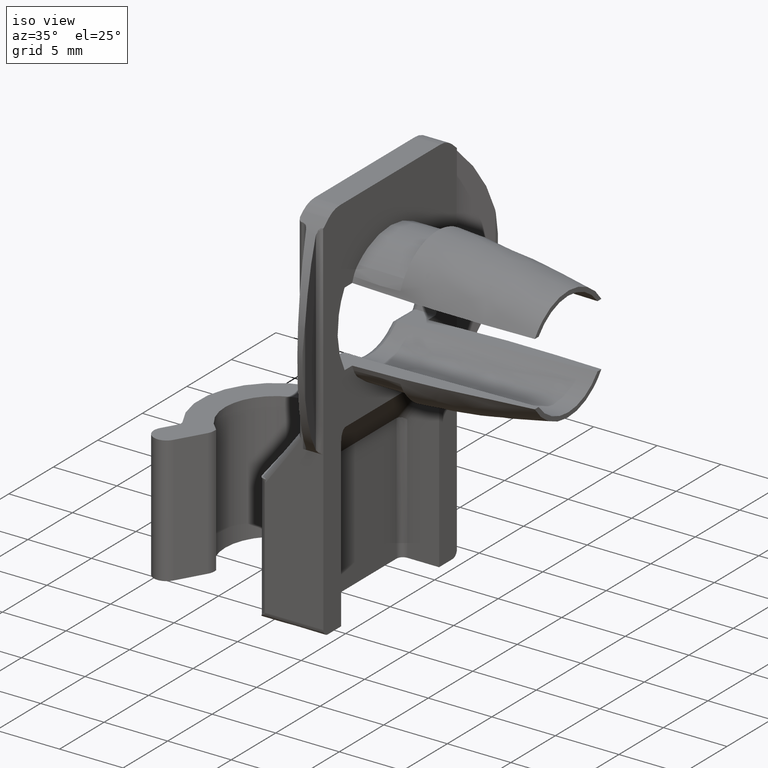
[diagram: clean part render]
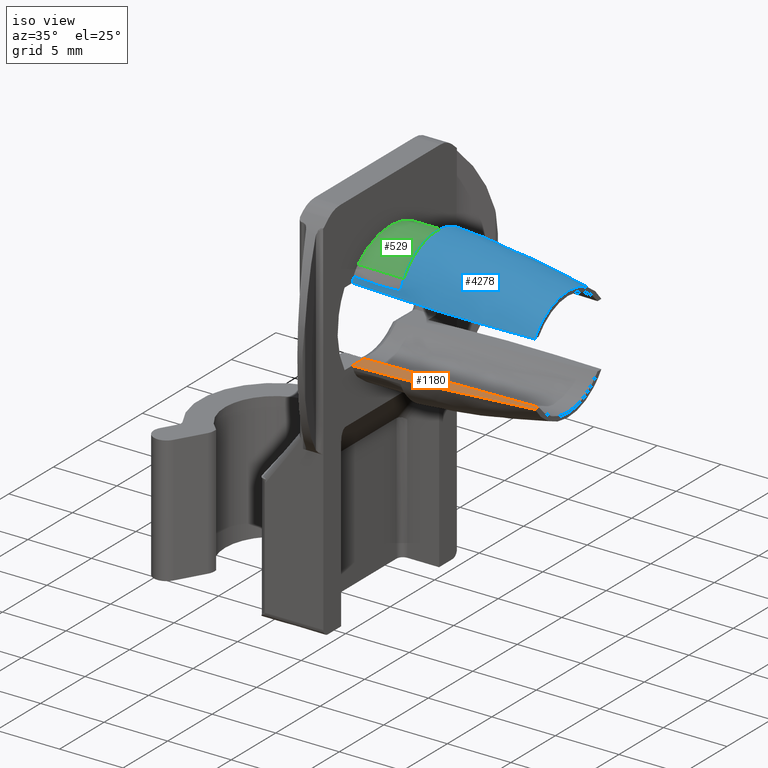
[diagram: same view with three faces highlighted in distinct colors, each labeled with its STEP entity id]
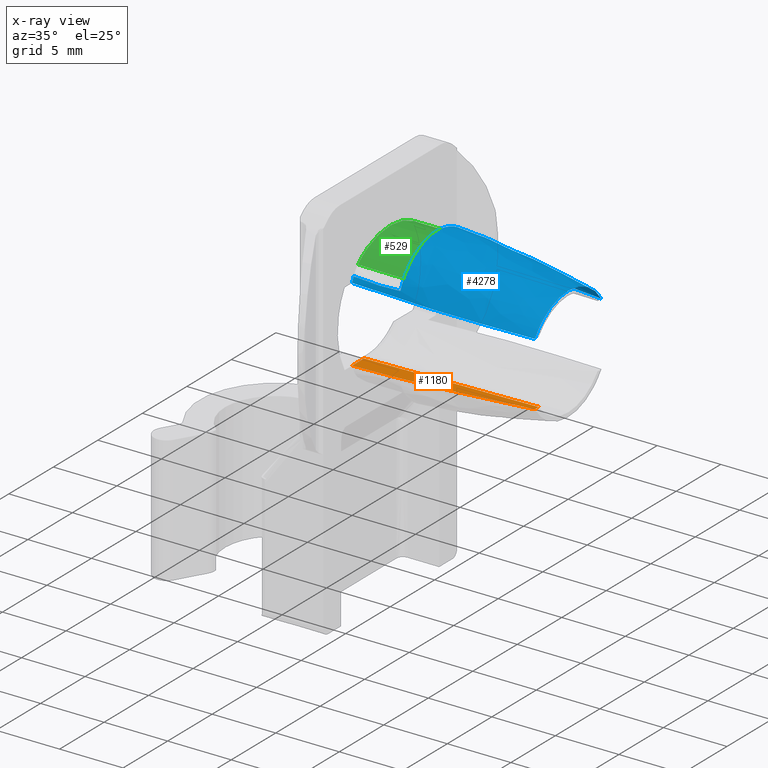
[diagram: x-ray of the same camera — body ghosted, the three highlighted faces saturated]
A machine part, iso view with three faces highlighted in distinct colors.
The next image is the same camera in x-ray (body ghosted, the three faces saturated) — at least one of them is partly hidden behind the body in this view.
Their STEP definitions:

[orange] entity #1180 — the highlighted face is a freeform B-spline surface patch.
#1126=CARTESIAN_POINT('',(-0.699300022815281,-4.376957850473700,-2.959353842485504));
#1127=CARTESIAN_POINT('',(14.699301398324550,-4.376957850473700,-2.478146829939503));
#1128=CARTESIAN_POINT('',(-0.699300022815281,-2.862716975014570,-2.959353842485504));
#1129=CARTESIAN_POINT('',(14.699301398324550,-2.862716975014570,-2.478146829939503));
#1130=B_SPLINE_SURFACE_WITH_KNOTS('',1,1,((#1126,#1128),(#1127,#1129)),.UNSPECIFIED.,.F.,.F.,.U.,(2,2),(2,2),(0.0,15.406118457160231),(0.041713803041726,0.958291427265853),.UNSPECIFIED.);
#1131=CARTESIAN_POINT('',(14.000000999999980,-3.312476415010535,-2.500000000000000));
#1132=VERTEX_POINT('',#1131);
#1133=CARTESIAN_POINT('',(14.000000999999980,-3.741232967873545,-2.500000000000000));
#1134=VERTEX_POINT('',#1133);
#1135=CARTESIAN_POINT('',(14.000000999999980,-3.312476415010535,-2.500000000000000));
#1136=CARTESIAN_POINT('',(14.000000999999980,-3.741232967873545,-2.500000000000000));
#1137=QUASI_UNIFORM_CURVE('',1,(#1135,#1136),.UNSPECIFIED.,.F.,.U.);
#1138=EDGE_CURVE('',#1132,#1134,#1137,.T.);
#1139=ORIENTED_EDGE('',*,*,#1138,.F.);
#1140=CARTESIAN_POINT('',(0.0,-2.931483560914855,-2.937499639503970));
#1141=VERTEX_POINT('',#1140);
#1142=CARTESIAN_POINT('',(14.000000999999980,-3.312476415010535,-2.500000000000000));
#1143=CARTESIAN_POINT('',(6.572874453938194,-3.137307382620636,-2.732097496794270));
#1144=CARTESIAN_POINT('',(0.0,-2.931483560914855,-2.937499639503970));
#1152=(BOUNDED_CURVE()B_SPLINE_CURVE(2,(#1142,#1143,#1144),.UNSPECIFIED.,.F.,.U.)CURVE()GEOMETRIC_REPRESENTATION_ITEM()QUASI_UNIFORM_CURVE()RATIONAL_B_SPLINE_CURVE((1.0,0.997554251139923,1.0))REPRESENTATION_ITEM(''));
#1153=EDGE_CURVE('',#1132,#1141,#1152,.T.);
#1154=ORIENTED_EDGE('',*,*,#1153,.T.);
#1155=CARTESIAN_POINT('',(0.0,-4.261698606471740,-2.937500684159690));
#1156=VERTEX_POINT('',#1155);
#1157=CARTESIAN_POINT('',(0.0,-2.931483560914855,-2.937499639503970));
#1158=CARTESIAN_POINT('',(0.0,-4.261698606471740,-2.937500684159690));
#1159=QUASI_UNIFORM_CURVE('',1,(#1157,#1158),.UNSPECIFIED.,.F.,.U.);
#1160=EDGE_CURVE('',#1141,#1156,#1159,.T.);
#1161=ORIENTED_EDGE('',*,*,#1160,.T.);
#1162=CARTESIAN_POINT('',(14.000000999999980,-3.741232967873545,-2.500000000000000));
#1163=CARTESIAN_POINT('',(12.835844566976830,-3.840756952667970,-2.536379942011818));
#1164=CARTESIAN_POINT('',(11.671371785609670,-3.936234963273378,-2.572769779677317));
#1165=CARTESIAN_POINT('',(9.340504829341636,-4.102851975159538,-2.645609479137943));
#1166=CARTESIAN_POINT('',(8.174250397016063,-4.174178171342592,-2.682054983724761));
#1167=CARTESIAN_POINT('',(6.423444699692329,-4.250932564681252,-2.736767742197306));
#1168=CARTESIAN_POINT('',(5.839475525595292,-4.271465092389796,-2.755016805715242));
#1169=CARTESIAN_POINT('',(4.963524931993098,-4.292799048232805,-2.782390302006503));
#1170=CARTESIAN_POINT('',(4.671543355855450,-4.298330136172320,-2.791514739674416));
#1171=CARTESIAN_POINT('',(4.087584560325857,-4.305870858822704,-2.809763478861971));
#1172=CARTESIAN_POINT('',(2.627701253343716,-4.315564134451880,-2.855384899272981));
#1173=CARTESIAN_POINT('',(1.167865805137671,-4.286574307350698,-2.901004824095972));
#1174=CARTESIAN_POINT('',(0.0,-4.261698606471740,-2.937500684159690));
#1175=B_SPLINE_CURVE_WITH_KNOTS('',3,(#1162,#1163,#1164,#1165,#1166,#1167,#1168,#1169,#1170,#1171,#1172,#1173,#1174),.UNSPECIFIED.,.F.,.U.,(4,2,2,2,2,1,4),(0.000003917022872,0.250000000000000,0.500000000000000,0.625000000000000,0.687500000000000,0.750000000000000,0.999999496767781),.UNSPECIFIED.);
#1176=EDGE_CURVE('',#1134,#1156,#1175,.T.);
#1177=ORIENTED_EDGE('',*,*,#1176,.F.);
#1178=EDGE_LOOP('',(#1139,#1154,#1161,#1177));
#1179=FACE_OUTER_BOUND('',#1178,.T.);
#1180=ADVANCED_FACE('',(#1179),#1130,.T.);

[blue] entity #4278 — the highlighted face is a freeform B-spline surface patch.
#82=CARTESIAN_POINT('',(0.0,-4.099418711884916,3.347956923571710));
#83=VERTEX_POINT('',#82);
#97=CARTESIAN_POINT('',(3.700001000000000,-4.128457397104045,3.306215122346200));
#98=VERTEX_POINT('',#97);
#99=CARTESIAN_POINT('',(3.700001000000000,-4.128457397104045,3.306215122346200));
#100=CARTESIAN_POINT('',(3.391999047873050,-4.142180217898688,3.286502020329005));
#101=CARTESIAN_POINT('',(3.083773449158488,-4.149586015131855,3.275559153809963));
#102=CARTESIAN_POINT('',(2.467003504833615,-4.155783363667416,3.266440961115987));
#103=CARTESIAN_POINT('',(2.158458266908443,-4.154532726085320,3.268288924398687));
#104=CARTESIAN_POINT('',(1.232495301524052,-4.141887266752386,3.286909601925169));
#105=CARTESIAN_POINT('',(0.616201854731451,-4.121384574441821,3.316888922331295));
#106=CARTESIAN_POINT('',(0.0,-4.099418711884916,3.347956923571710));
#107=B_SPLINE_CURVE_WITH_KNOTS('',3,(#99,#100,#101,#102,#103,#104,#105,#106),.UNSPECIFIED.,.F.,.U.,(4,2,2,4),(0.0,0.250000000000000,0.500000000000000,0.999999963217079),.UNSPECIFIED.);
#108=EDGE_CURVE('',#98,#83,#107,.T.);
#175=CARTESIAN_POINT('',(3.700001000000000,4.128457397104084,3.306215122346105));
#176=VERTEX_POINT('',#175);
#190=CARTESIAN_POINT('',(0.0,4.099426877488095,3.347960629082760));
#191=VERTEX_POINT('',#190);
#192=CARTESIAN_POINT('',(0.0,4.099426877488095,3.347960629082760));
#193=CARTESIAN_POINT('',(0.616201837425678,4.121391378458610,3.316892011311229));
#194=CARTESIAN_POINT('',(1.232495266956013,4.141892708601440,3.286912075109566));
#195=CARTESIAN_POINT('',(2.158458223651801,4.154536124565493,3.268290469493173));
#196=CARTESIAN_POINT('',(2.467003470239358,4.155786081582886,3.266442196796633));
#197=CARTESIAN_POINT('',(3.083773431874028,4.149587373094285,3.275559771197741));
#198=CARTESIAN_POINT('',(3.391999039236044,4.142180896469506,3.286502328836260));
#199=CARTESIAN_POINT('',(3.700001000000000,4.128457397104084,3.306215122346105));
#200=B_SPLINE_CURVE_WITH_KNOTS('',3,(#192,#193,#194,#195,#196,#197,#198,#199),.UNSPECIFIED.,.F.,.U.,(4,2,2,4),(0.000000064881542,0.500000000000000,0.750000000000000,1.0),.UNSPECIFIED.);
#201=EDGE_CURVE('',#191,#176,#200,.T.);
#535=CARTESIAN_POINT('',(3.700001000000000,4.128457397104084,3.306215122346105));
#536=CARTESIAN_POINT('',(3.700000999999991,3.884432094344327,3.867682339679244));
#537=CARTESIAN_POINT('',(3.700000999999990,3.528445623829919,4.380062872363206));
#538=CARTESIAN_POINT('',(3.700000999999990,2.256819614045084,5.573592221250228));
#539=CARTESIAN_POINT('',(3.700000999999990,1.131363887588923,6.019001920131410));
#540=CARTESIAN_POINT('',(3.700000999999990,-1.131363887588922,6.019001920131410));
#541=CARTESIAN_POINT('',(3.700000999999990,-2.256819614045084,5.573592221250222));
#542=CARTESIAN_POINT('',(3.700000999999990,-3.528445623829896,4.380062872363228));
#543=CARTESIAN_POINT('',(3.700000999999990,-3.884432094344289,3.867682339679302));
#544=CARTESIAN_POINT('',(3.700001000000000,-4.128457397104045,3.306215122346200));
#545=B_SPLINE_CURVE_WITH_KNOTS('',3,(#535,#536,#537,#538,#539,#540,#541,#542,#543,#544),.UNSPECIFIED.,.F.,.U.,(4,2,2,2,4),(0.114680008765642,0.250000000000000,0.500000000000000,0.750000000000000,0.885319991234351),.UNSPECIFIED.);
#546=EDGE_CURVE('',#176,#98,#545,.T.);
#1075=CARTESIAN_POINT('',(0.0,-4.261669229081220,2.937499639503975));
#1076=VERTEX_POINT('',#1075);
#1099=CARTESIAN_POINT('',(14.000000999999980,-3.741263463284405,2.499999999999901));
#1100=VERTEX_POINT('',#1099);
#1106=CARTESIAN_POINT('',(0.0,-4.261669229081220,2.937499639503975));
#1107=CARTESIAN_POINT('',(1.168057187426552,-4.286553953518574,2.900997885081650));
#1108=CARTESIAN_POINT('',(2.336132272792261,-4.309757873366620,2.864495571346266));
#1109=CARTESIAN_POINT('',(3.796556458133838,-4.307791702243252,2.818857356420155));
#1110=CARTESIAN_POINT('',(4.088684468576654,-4.305849440656031,2.809728364268188));
#1111=CARTESIAN_POINT('',(4.672820094077309,-4.298299368322071,2.791474142316664));
#1112=CARTESIAN_POINT('',(4.964828781611551,-4.292763653662395,2.782348879002227));
#1113=CARTESIAN_POINT('',(5.840695843674792,-4.271421663052593,2.754978057821399));
#1114=CARTESIAN_POINT('',(6.424395669622442,-4.250893999246387,2.736737454593732));
#1115=CARTESIAN_POINT('',(8.174985733380332,-4.174141263296170,2.682031564086579));
#1116=CARTESIAN_POINT('',(9.341318748329680,-4.102808342476376,2.645583690005926));
#1117=CARTESIAN_POINT('',(11.671707366485791,-3.936227541656376,2.572759110897841));
#1118=CARTESIAN_POINT('',(12.836002169448220,-3.840769015986586,2.536374930883450));
#1119=CARTESIAN_POINT('',(14.000000999999980,-3.741263463284405,2.499999999999901));
#1120=B_SPLINE_CURVE_WITH_KNOTS('',3,(#1106,#1107,#1108,#1109,#1110,#1111,#1112,#1113,#1114,#1115,#1116,#1117,#1118,#1119),.UNSPECIFIED.,.F.,.U.,(4,2,2,2,2,2,4),(0.000000458077681,0.250000000000000,0.312500000000000,0.375000000000000,0.500000000000000,0.750000000000000,0.999995897253464),.UNSPECIFIED.);
#1121=EDGE_CURVE('',#1076,#1100,#1120,.T.);
#1186=CARTESIAN_POINT('',(14.000000999999980,3.741232961336995,2.499999999999901));
#1187=VERTEX_POINT('',#1186);
#1210=CARTESIAN_POINT('',(0.0,4.261698783995070,2.937499639503975));
#1211=VERTEX_POINT('',#1210);
#1217=CARTESIAN_POINT('',(14.000000999999980,3.741232961336995,2.499999999999901));
#1218=CARTESIAN_POINT('',(12.835844571104090,3.840756989784507,2.536379855015422));
#1219=CARTESIAN_POINT('',(11.671371791916449,3.936235020804001,2.572769605721890));
#1220=CARTESIAN_POINT('',(9.340504837964062,4.102852055200630,2.645609131184931));
#1221=CARTESIAN_POINT('',(8.174250405949474,4.174178253160262,2.682054548738162));
#1222=CARTESIAN_POINT('',(6.423444708847432,4.250932650437719,2.736767176561718));
#1223=CARTESIAN_POINT('',(5.839475534802202,4.271465179640688,2.755016196503275));
#1224=CARTESIAN_POINT('',(4.963524941024153,4.292799140024627,2.782389627438130));
#1225=CARTESIAN_POINT('',(4.671543364784003,4.298330229863203,2.791514043322090));
#1226=CARTESIAN_POINT('',(4.087584568951233,4.305870957470528,2.809762738945135));
#1227=CARTESIAN_POINT('',(2.627701259694370,4.315564248330309,2.855384050493290));
#1228=CARTESIAN_POINT('',(1.167865808129886,4.286574453502749,2.901003866490859));
#1229=CARTESIAN_POINT('',(0.0,4.261698783995070,2.937499639503975));
#1230=B_SPLINE_CURVE_WITH_KNOTS('',3,(#1217,#1218,#1219,#1220,#1221,#1222,#1223,#1224,#1225,#1226,#1227,#1228,#1229),.UNSPECIFIED.,.F.,.U.,(4,2,2,2,2,1,4),(0.000003916985477,0.250000000000000,0.500000000000000,0.625000000000000,0.687500000000000,0.750000000000000,0.999999497037855),.UNSPECIFIED.);
#1231=EDGE_CURVE('',#1187,#1211,#1230,.T.);
#4073=CARTESIAN_POINT('',(0.0,-4.099418711884916,3.347956923571710));
#4074=CARTESIAN_POINT('',(0.0,-4.160037249335250,3.213858109386814));
#4075=CARTESIAN_POINT('',(0.0,-4.214220386131395,3.076834285048805));
#4076=CARTESIAN_POINT('',(0.0,-4.261669229081220,2.937499639503975));
#4077=B_SPLINE_CURVE_WITH_KNOTS('',3,(#4073,#4074,#4075,#4076),.UNSPECIFIED.,.F.,.U.,(4,4),(0.881451607106437,0.914084738369447),.UNSPECIFIED.);
#4078=EDGE_CURVE('',#83,#1076,#4077,.T.);
#4083=CARTESIAN_POINT('',(0.0,4.261698783995070,2.937499639503975));
#4084=CARTESIAN_POINT('',(0.0,4.214243105821922,3.076835621110904));
#4085=CARTESIAN_POINT('',(0.0,4.160052823385081,3.213860691139028));
#4086=CARTESIAN_POINT('',(0.0,4.099426877488095,3.347960629082760));
#4087=B_SPLINE_CURVE_WITH_KNOTS('',3,(#4083,#4084,#4085,#4086),.UNSPECIFIED.,.F.,.U.,(4,4),(0.085914558880980,0.118548394266486),.UNSPECIFIED.);
#4088=EDGE_CURVE('',#1211,#191,#4087,.T.);
#4198=CARTESIAN_POINT('',(-0.070042099043105,4.336383243706240,2.692374932640487));
#4199=CARTESIAN_POINT('',(-0.070042099043105,4.115013132671975,3.487557842910753));
#4200=CARTESIAN_POINT('',(-0.070042099043105,3.676505305138551,4.221258266414973));
#4201=CARTESIAN_POINT('',(-0.070042099043105,2.249772362325560,5.555515625846588));
#4202=CARTESIAN_POINT('',(-0.070042099043105,1.127811106292123,5.998393984946877));
#4203=CARTESIAN_POINT('',(-0.070042099043105,-1.127811106292123,5.998393984946877));
#4204=CARTESIAN_POINT('',(-0.070042099043105,-2.249772362325555,5.555515625846588));
#4205=CARTESIAN_POINT('',(-0.070042099043105,-3.676268192896415,4.221480009913419));
#4206=CARTESIAN_POINT('',(-0.070042099043105,-4.114668252841776,3.488134818483595));
#4207=CARTESIAN_POINT('',(-0.070042099043105,-4.336122005841610,2.693312934080753));
#4208=CARTESIAN_POINT('',(1.353453309823487,4.348154287409421,2.698391109292773));
#4209=CARTESIAN_POINT('',(1.353453309823487,4.129420845022088,3.499205368584124));
#4210=CARTESIAN_POINT('',(1.353453309823487,3.691286904221634,4.238778947699028));
#4211=CARTESIAN_POINT('',(1.353453309823487,2.260924946077365,5.584122627868094));
#4212=CARTESIAN_POINT('',(1.353453309823487,1.133433537920985,6.031006942769922));
#4213=CARTESIAN_POINT('',(1.353453309823487,-1.133433537920985,6.031006942769922));
#4214=CARTESIAN_POINT('',(1.353453309823487,-2.260924946077365,5.584122627868096));
#4215=CARTESIAN_POINT('',(1.353453309823487,-3.691049188864558,4.239002533660265));
#4216=CARTESIAN_POINT('',(1.353453309823487,-4.129076258931550,3.499786962781504));
#4217=CARTESIAN_POINT('',(1.353453309823487,-4.347896158816342,2.699335753812491));
#4218=CARTESIAN_POINT('',(6.069655573938930,4.389137395327098,2.719337562573359));
#4219=CARTESIAN_POINT('',(6.069655573938930,4.179584011940917,3.539758425193416));
#4220=CARTESIAN_POINT('',(6.069655573938930,3.742751828292404,4.299780502867953));
#4221=CARTESIAN_POINT('',(6.069655573938930,2.299754769072385,5.683723298854615));
#4222=CARTESIAN_POINT('',(6.069655573938930,1.153009093667428,6.144555104146208));
#4223=CARTESIAN_POINT('',(6.069655573938930,-1.153009093667426,6.144555104146208));
#4224=CARTESIAN_POINT('',(6.069655573938930,-2.299754769072385,5.683723298854605));
#4225=CARTESIAN_POINT('',(6.069655573938930,-3.742512013076937,4.300010503710777));
#4226=CARTESIAN_POINT('',(6.069655573938930,-4.179240448560385,3.540356100002911));
#4227=CARTESIAN_POINT('',(6.069655573938930,-4.388890092249122,2.720305336226641));
#4228=CARTESIAN_POINT('',(10.780826038377009,4.035715191877739,2.538703588016193));
#4229=CARTESIAN_POINT('',(10.780826038377009,3.746996590311897,3.190044815082299));
#4230=CARTESIAN_POINT('',(10.780826038377009,3.298938564984413,3.773727083860693));
#4231=CARTESIAN_POINT('',(10.780826038377009,1.964901647878732,4.824806286611457));
#4232=CARTESIAN_POINT('',(10.780826038377009,0.984197200251459,5.165360420525747));
#4233=CARTESIAN_POINT('',(10.780826038377009,-0.984197200251457,5.165360420525747));
#4234=CARTESIAN_POINT('',(10.780826038377009,-1.964901647878732,4.824806286611446));
#4235=CARTESIAN_POINT('',(10.780826038377009,-3.298716858121830,3.773901765287708));
#4236=CARTESIAN_POINT('',(10.780826038377009,-3.746644207482530,3.190503817017710));
#4237=CARTESIAN_POINT('',(10.780826038377009,-4.035374533815315,2.539471905118687));
#4238=CARTESIAN_POINT('',(14.070029742514590,3.790341323940566,2.413293083001591));
#4239=CARTESIAN_POINT('',(14.070029742514601,3.446659916978661,2.947245748284184));
#4240=CARTESIAN_POINT('',(14.070029742514601,2.990808017449911,3.408498864174481));
#4241=CARTESIAN_POINT('',(14.070029742514601,1.732419917143626,4.228477625100673));
#4242=CARTESIAN_POINT('',(14.070029742514601,0.866994526404143,4.485525411184288));
#4243=CARTESIAN_POINT('',(14.070029742514601,-0.866994526404143,4.485525411184288));
#4244=CARTESIAN_POINT('',(14.070029742514601,-1.732419917143626,4.228477625100674));
#4245=CARTESIAN_POINT('',(14.070029742514601,-2.990598882849468,3.408635138453057));
#4246=CARTESIAN_POINT('',(14.070029742514601,-3.446301410984836,2.947608472455606));
#4247=CARTESIAN_POINT('',(14.070029742514601,-3.789935851405813,2.413922921466142));
#4248=B_SPLINE_SURFACE_WITH_KNOTS('',3,3,((#4198,#4208,#4218,#4228,#4238),(#4199,#4209,#4219,#4229,#4239),(#4200,#4210,#4220,#4230,#4240),(#4201,#4211,#4221,#4231,#4241),(#4202,#4212,#4222,#4232,#4242),(#4203,#4213,#4223,#4233,#4243),(#4204,#4214,#4224,#4234,#4244),(#4205,#4215,#4225,#4235,#4245),(#4206,#4216,#4226,#4236,#4246),(#4207,#4217,#4227,#4237,#4247)),.UNSPECIFIED.,.F.,.F.,.U.,(4,2,2,2,4),(4,1,4),(0.0,2.489371644251150,5.889885740106187,9.290399835961225,11.778792625675679),(0.0,4.351804740287470,14.417946880023850),.UNSPECIFIED.);
#4249=ORIENTED_EDGE('',*,*,#4088,.T.);
#4250=ORIENTED_EDGE('',*,*,#201,.T.);
#4251=ORIENTED_EDGE('',*,*,#546,.T.);
#4252=ORIENTED_EDGE('',*,*,#108,.T.);
#4253=ORIENTED_EDGE('',*,*,#4078,.T.);
#4254=ORIENTED_EDGE('',*,*,#1121,.T.);
#4255=CARTESIAN_POINT('',(14.000000999999980,3.741232961336995,2.499999999999901));
#4256=CARTESIAN_POINT('',(14.000000999999980,3.601449411939316,2.709074849252457));
#4257=CARTESIAN_POINT('',(14.000000999999980,3.437590843820591,2.903174757136969));
#4258=CARTESIAN_POINT('',(14.000000999999980,3.014363308519611,3.404512139486044));
#4259=CARTESIAN_POINT('',(14.000000999999980,2.464537477231977,3.764619757335866));
#4260=CARTESIAN_POINT('',(14.000000999999980,1.915702104787008,4.124078675626461));
#4261=CARTESIAN_POINT('',(14.000000999999980,1.285905500598313,4.312013396679502));
#4262=CARTESIAN_POINT('',(14.000000999999980,0.657243414979694,4.499609571240580));
#4263=CARTESIAN_POINT('',(14.000000999999980,0.000010546163206,4.499694813418714));
#4264=CARTESIAN_POINT('',(14.000000999999980,-0.656038380268318,4.499779902041188));
#4265=CARTESIAN_POINT('',(14.000000999999980,-1.285884408358099,4.312008554865225));
#4266=CARTESIAN_POINT('',(14.000000999999980,-1.914595828847875,4.124575459877999));
#4267=CARTESIAN_POINT('',(14.000000999999980,-2.464516385243152,3.764610477587439));
#4268=CARTESIAN_POINT('',(14.000000999999980,-3.013446312160211,3.405293937909983));
#4269=CARTESIAN_POINT('',(14.000000999999980,-3.437569752227389,2.903161813524967));
#4270=CARTESIAN_POINT('',(14.000000999999980,-3.601432212695148,2.709160262069577));
#4271=CARTESIAN_POINT('',(14.000000999999980,-3.741263463284405,2.499999999999901));
#4272=B_SPLINE_CURVE_WITH_KNOTS('',2,(#4255,#4256,#4257,#4258,#4259,#4260,#4261,#4262,#4263,#4264,#4265,#4266,#4267,#4268,#4269,#4270,#4271),.UNSPECIFIED.,.F.,.U.,(3,2,2,2,2,2,2,2,3),(0.076647171412884,0.125000000000000,0.250000000000000,0.375000000000000,0.500000000000000,0.625000000000000,0.750000000000000,0.875000000000000,0.923381603169799),.UNSPECIFIED.);
#4273=EDGE_CURVE('',#1187,#1100,#4272,.T.);
#4274=ORIENTED_EDGE('',*,*,#4273,.F.);
#4275=ORIENTED_EDGE('',*,*,#1231,.T.);
#4276=EDGE_LOOP('',(#4249,#4250,#4251,#4252,#4253,#4254,#4274,#4275));
#4277=FACE_OUTER_BOUND('',#4276,.T.);
#4278=ADVANCED_FACE('',(#4277),#4248,.T.);

[green] entity #529 — the highlighted face is a freeform B-spline surface patch.
#84=CARTESIAN_POINT('',(0.0,-3.614930347367465,4.011518239230846));
#85=VERTEX_POINT('',#84);
#110=CARTESIAN_POINT('',(3.700001000000000,-3.642710956877070,3.986308679047290));
#111=VERTEX_POINT('',#110);
#123=CARTESIAN_POINT('',(0.0,-3.614930347367465,4.011518239230846));
#124=CARTESIAN_POINT('',(0.616416080352589,-3.636240734596840,3.992314645749397));
#125=CARTESIAN_POINT('',(1.232870643596622,-3.656580450507463,3.973606833638902));
#126=CARTESIAN_POINT('',(2.158439444120175,-3.669230297279144,3.961916454239369));
#127=CARTESIAN_POINT('',(2.466900744841456,-3.670512692792269,3.960726550683130));
#128=CARTESIAN_POINT('',(3.083621178746697,-3.664243545132587,3.966527130776949));
#129=CARTESIAN_POINT('',(3.391883187429394,-3.656737806110073,3.973490866503044));
#130=CARTESIAN_POINT('',(3.700001000000000,-3.642710956877070,3.986308679047290));
#131=B_SPLINE_CURVE_WITH_KNOTS('',3,(#123,#124,#125,#126,#127,#128,#129,#130),.UNSPECIFIED.,.F.,.U.,(4,2,2,4),(0.0,0.500000000000000,0.750000000000000,1.0),.UNSPECIFIED.);
#132=EDGE_CURVE('',#85,#111,#131,.T.);
#177=CARTESIAN_POINT('',(3.700001000000000,3.642710956877065,3.986308679047295));
#178=VERTEX_POINT('',#177);
#203=CARTESIAN_POINT('',(0.0,3.614930347367470,4.011518239230846));
#204=VERTEX_POINT('',#203);
#216=CARTESIAN_POINT('',(3.700001000000000,3.642710956877065,3.986308679047295));
#217=CARTESIAN_POINT('',(3.391883187429395,3.656737806110069,3.973490866503051));
#218=CARTESIAN_POINT('',(3.083621178746697,3.664243545132579,3.966527130776957));
#219=CARTESIAN_POINT('',(2.466900744841456,3.670512692792261,3.960726550683135));
#220=CARTESIAN_POINT('',(2.158439444120175,3.669230297279145,3.961916454239369));
#221=CARTESIAN_POINT('',(1.232870643596621,3.656580450507467,3.973606833638898));
#222=CARTESIAN_POINT('',(0.616416080352589,3.636240734596840,3.992314645749395));
#223=CARTESIAN_POINT('',(-3.952120E-016,3.614930347367470,4.011518239230840));
#224=B_SPLINE_CURVE_WITH_KNOTS('',3,(#216,#217,#218,#219,#220,#221,#222,#223),.UNSPECIFIED.,.F.,.U.,(4,2,2,4),(0.0,0.250000000000000,0.500000000000000,1.0),.UNSPECIFIED.);
#225=EDGE_CURVE('',#178,#204,#224,.T.);
#485=CARTESIAN_POINT('',(3.792501025000000,3.786469702679870,3.850019115626233));
#486=CARTESIAN_POINT('',(-0.094812525625000,3.786469702679870,3.850019115626233));
#487=CARTESIAN_POINT('',(3.792501025000000,-0.063549412946359,7.636488818306099));
#488=CARTESIAN_POINT('',(-0.094812525625000,-0.063549412946359,7.636488818306099));
#489=CARTESIAN_POINT('',(3.792501025000000,-3.850019115626230,3.786469702679874));
#490=CARTESIAN_POINT('',(-0.094812525625000,-3.850019115626230,3.786469702679874));
#498=(BOUNDED_SURFACE()B_SPLINE_SURFACE(1,2,((#485,#487,#489),(#486,#488,#490)),.UNSPECIFIED.,.F.,.F.,.U.)B_SPLINE_SURFACE_WITH_KNOTS((2,2),(3,3),(0.0,3.887313550625001),(0.0,8.947012947258845),.UNSPECIFIED.)GEOMETRIC_REPRESENTATION_ITEM()RATIONAL_B_SPLINE_SURFACE(((1.0,0.707106781186548,1.0),(1.0,0.707106781186548,1.0)))REPRESENTATION_ITEM('')SURFACE());
#499=CARTESIAN_POINT('',(3.700001000000000,3.642710956877065,3.986308679047294));
#500=CARTESIAN_POINT('',(3.700001000000001,-1.301043E-015,7.315038133717506));
#501=CARTESIAN_POINT('',(3.700001000000000,-3.642710956877067,3.986308679047292));
#509=(BOUNDED_CURVE()B_SPLINE_CURVE(2,(#499,#500,#501),.UNSPECIFIED.,.F.,.U.)CURVE()GEOMETRIC_REPRESENTATION_ITEM()QUASI_UNIFORM_CURVE()RATIONAL_B_SPLINE_CURVE((1.0,0.738205310934684,1.0))REPRESENTATION_ITEM(''));
#510=EDGE_CURVE('',#178,#111,#509,.T.);
#511=ORIENTED_EDGE('',*,*,#510,.F.);
#512=ORIENTED_EDGE('',*,*,#225,.T.);
#513=CARTESIAN_POINT('',(0.0,3.614930347367468,4.011518239230843));
#514=CARTESIAN_POINT('',(0.0,5.204170E-015,7.269068283132384));
#515=CARTESIAN_POINT('',(0.0,-3.614930347367462,4.011518239230847));
#523=(BOUNDED_CURVE()B_SPLINE_CURVE(2,(#513,#514,#515),.UNSPECIFIED.,.F.,.U.)CURVE()GEOMETRIC_REPRESENTATION_ITEM()QUASI_UNIFORM_CURVE()RATIONAL_B_SPLINE_CURVE((1.0,0.742873748005712,1.0))REPRESENTATION_ITEM(''));
#524=EDGE_CURVE('',#204,#85,#523,.T.);
#525=ORIENTED_EDGE('',*,*,#524,.T.);
#526=ORIENTED_EDGE('',*,*,#132,.T.);
#527=EDGE_LOOP('',(#511,#512,#525,#526));
#528=FACE_OUTER_BOUND('',#527,.T.);
#529=ADVANCED_FACE('',(#528),#498,.T.);